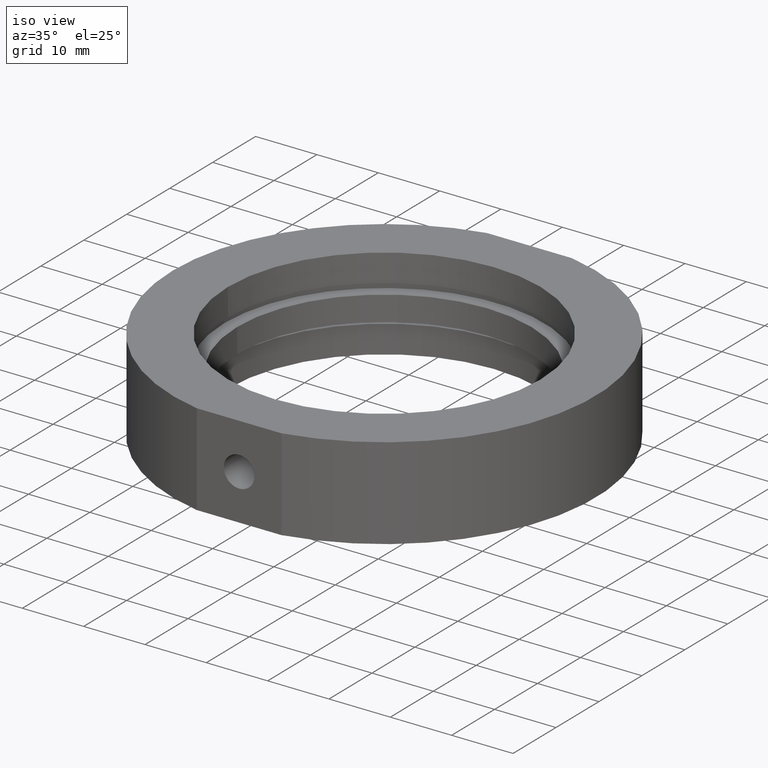
[diagram: clean part render]
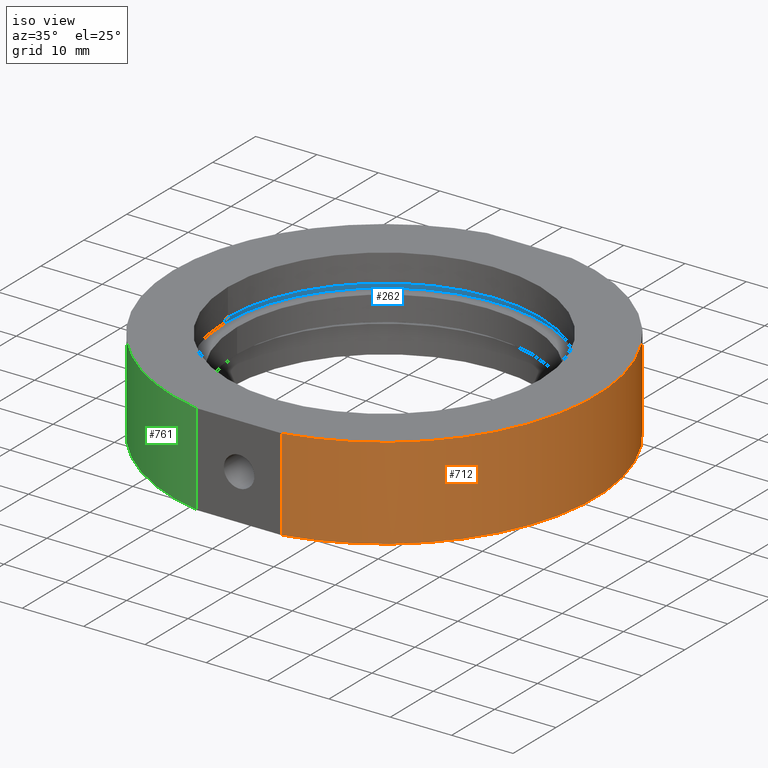
[diagram: same view with three faces highlighted in distinct colors, each labeled with its STEP entity id]
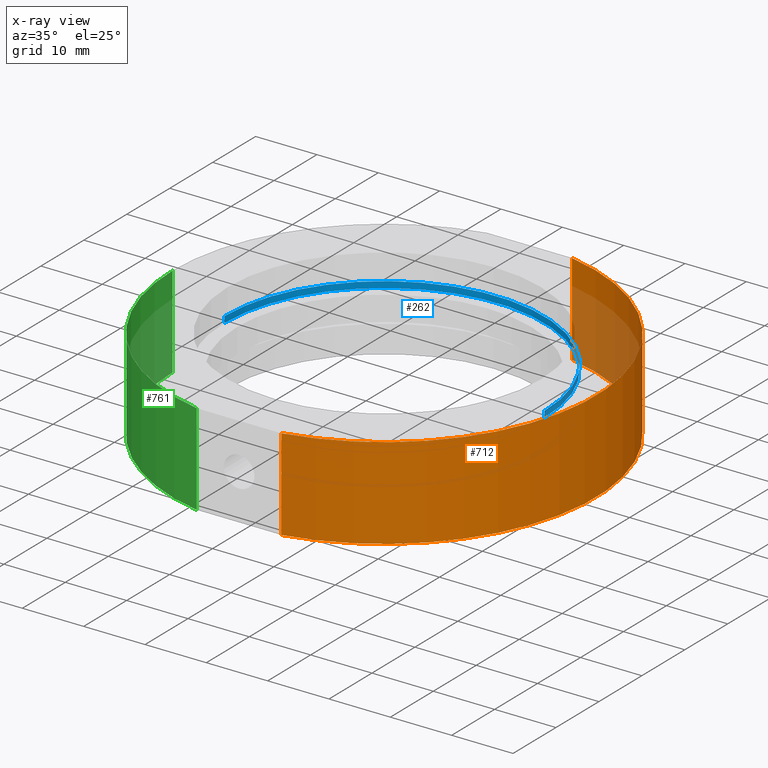
[diagram: x-ray of the same camera — body ghosted, the three highlighted faces saturated]
A machine part, iso view with three faces highlighted in distinct colors.
The next image is the same camera in x-ray (body ghosted, the three faces saturated) — at least one of them is partly hidden behind the body in this view.
Their STEP definitions:

[orange] entity #712 — the highlighted cylindrical surface (partial cylindrical patch) has radius 34.5 mm, axis along (-0, -0, -1).
#14 = DIRECTION ( 'NONE',  ( -1.224646799147350500E-016, -0.0000000000000000000, -1.000000000000000000 ) ) ;
#28 = CARTESIAN_POINT ( 'NONE',  ( 6.914477565225009700, 33.79999999999999700, 7.500000000000000000 ) ) ;
#33 = EDGE_CURVE ( 'NONE', #378, #446, #341, .T. ) ;
#43 = CYLINDRICAL_SURFACE ( 'NONE', #278, 34.49999999999999300 ) ;
#56 = CARTESIAN_POINT ( 'NONE',  ( 6.914477565225066500, 33.79999999999998300, -31.93906810035839800 ) ) ;
#86 = CARTESIAN_POINT ( 'NONE',  ( 4.829892851045829500E-015, 0.0000000000000000000, 7.500000000000007100 ) ) ;
#87 = EDGE_LOOP ( 'NONE', ( #813, #944, #492, #276 ) ) ;
#94 = CARTESIAN_POINT ( 'NONE',  ( 2.992922652324803100E-015, 0.0000000000000000000, -7.499999999999996400 ) ) ;
#111 = AXIS2_PLACEMENT_3D ( 'NONE', #94, #14, #442 ) ;
#219 = DIRECTION ( 'NONE',  ( -1.224646799147350500E-016, -0.0000000000000000000, -1.000000000000000000 ) ) ;
#225 = EDGE_CURVE ( 'NONE', #503, #342, #598, .T. ) ;
#240 = FACE_OUTER_BOUND ( 'NONE', #87, .T. ) ;
#270 = DIRECTION ( 'NONE',  ( -1.000000000000000000, 0.0000000000000000000, 2.011273595335428800E-016 ) ) ;
#276 = ORIENTED_EDGE ( 'NONE', *, *, #33, .T. ) ;
#278 = AXIS2_PLACEMENT_3D ( 'NONE', #791, #870, #270 ) ;
#304 = EDGE_CURVE ( 'NONE', #378, #342, #938, .T. ) ;
#335 = EDGE_CURVE ( 'NONE', #446, #503, #798, .T. ) ;
#341 = LINE ( 'NONE', #56, #422 ) ;
#342 = VERTEX_POINT ( 'NONE', #373 ) ;
#373 = CARTESIAN_POINT ( 'NONE',  ( 6.914477565225039000, -33.79999999999999700, -7.499999999999997300 ) ) ;
#378 = VERTEX_POINT ( 'NONE', #452 ) ;
#380 = DIRECTION ( 'NONE',  ( -1.224646799147350500E-016, -0.0000000000000000000, -1.000000000000000000 ) ) ;
#390 = CARTESIAN_POINT ( 'NONE',  ( 6.914477565225009700, -33.79999999999999700, 7.500000000000000000 ) ) ;
#422 = VECTOR ( 'NONE', #863, 1000.000000000000000 ) ;
#428 = CARTESIAN_POINT ( 'NONE',  ( 6.914477565225066500, -33.79999999999998300, -31.93906810035839800 ) ) ;
#442 = DIRECTION ( 'NONE',  ( -1.000000000000000000, 0.0000000000000000000, 1.257045997084642900E-016 ) ) ;
#446 = VERTEX_POINT ( 'NONE', #28 ) ;
#452 = CARTESIAN_POINT ( 'NONE',  ( 6.914477565225039000, 33.79999999999999700, -7.499999999999997300 ) ) ;
#492 = ORIENTED_EDGE ( 'NONE', *, *, #304, .F. ) ;
#503 = VERTEX_POINT ( 'NONE', #390 ) ;
#598 = LINE ( 'NONE', #428, #706 ) ;
#706 = VECTOR ( 'NONE', #219, 1000.000000000000000 ) ;
#712 = ADVANCED_FACE ( 'NONE', ( #240 ), #43, .T. ) ;
#791 = CARTESIAN_POINT ( 'NONE',  ( 0.0000000000000000000, 0.0000000000000000000, -31.93906810035839800 ) ) ;
#798 = CIRCLE ( 'NONE', #858, 34.49999999999998600 ) ;
#813 = ORIENTED_EDGE ( 'NONE', *, *, #335, .T. ) ;
#858 = AXIS2_PLACEMENT_3D ( 'NONE', #86, #380, #899 ) ;
#863 = DIRECTION ( 'NONE',  ( 1.224646799147350500E-016, 0.0000000000000000000, 1.000000000000000000 ) ) ;
#870 = DIRECTION ( 'NONE',  ( -1.224646799147350500E-016, -0.0000000000000000000, -1.000000000000000000 ) ) ;
#899 = DIRECTION ( 'NONE',  ( -1.000000000000000000, 0.0000000000000000000, 1.257045997084643400E-016 ) ) ;
#938 = CIRCLE ( 'NONE', #111, 34.50000000000000000 ) ;
#944 = ORIENTED_EDGE ( 'NONE', *, *, #225, .T. ) ;

[blue] entity #262 — the highlighted cylindrical surface (partial cylindrical patch) has radius 26.1 mm, axis along (-0, -0, -1).
#18 = AXIS2_PLACEMENT_3D ( 'NONE', #179, #909, #103 ) ;
#23 = DIRECTION ( 'NONE',  ( -1.224646799147350500E-016, -0.0000000000000000000, -1.000000000000000000 ) ) ;
#32 = AXIS2_PLACEMENT_3D ( 'NONE', #817, #882, #889 ) ;
#37 = VERTEX_POINT ( 'NONE', #345 ) ;
#103 = DIRECTION ( 'NONE',  ( -1.000000000000000000, 0.0000000000000000000, 1.163128767417399300E-016 ) ) ;
#129 = DIRECTION ( 'NONE',  ( -1.224646799147350500E-016, -0.0000000000000000000, -1.000000000000000000 ) ) ;
#169 = DIRECTION ( 'NONE',  ( -1.000000000000000000, 0.0000000000000000000, 1.163128767417399300E-016 ) ) ;
#179 = CARTESIAN_POINT ( 'NONE',  ( 4.278801791429521400E-015, 0.0000000000000000000, 3.000000000000002700 ) ) ;
#185 = DIRECTION ( 'NONE',  ( -1.224646799147350500E-016, -0.0000000000000000000, -1.000000000000000000 ) ) ;
#262 = ADVANCED_FACE ( 'NONE', ( #377 ), #562, .F. ) ;
#345 = CARTESIAN_POINT ( 'NONE',  ( 26.10000000000000500, 3.196328145774592300E-015, 1.999999999999998700 ) ) ;
#377 = FACE_OUTER_BOUND ( 'NONE', #472, .T. ) ;
#421 = CIRCLE ( 'NONE', #18, 26.10000000000000100 ) ;
#437 = ORIENTED_EDGE ( 'NONE', *, *, #547, .F. ) ;
#472 = EDGE_LOOP ( 'NONE', ( #743, #437, #850, #857 ) ) ;
#487 = EDGE_CURVE ( 'NONE', #614, #37, #924, .T. ) ;
#488 = VECTOR ( 'NONE', #129, 1000.000000000000000 ) ;
#489 = LINE ( 'NONE', #700, #597 ) ;
#525 = LINE ( 'NONE', #572, #488 ) ;
#547 = EDGE_CURVE ( 'NONE', #637, #952, #421, .T. ) ;
#555 = CARTESIAN_POINT ( 'NONE',  ( -26.09999999999999800, 0.0000000000000000000, 3.000000000000005800 ) ) ;
#558 = CARTESIAN_POINT ( 'NONE',  ( -26.09999999999999800, 0.0000000000000000000, 2.000000000000004900 ) ) ;
#562 = CYLINDRICAL_SURFACE ( 'NONE', #32, 26.10000000000000100 ) ;
#572 = CARTESIAN_POINT ( 'NONE',  ( -26.10000000000000100, 0.0000000000000000000, -31.93906810035839800 ) ) ;
#597 = VECTOR ( 'NONE', #185, 1000.000000000000000 ) ;
#614 = VERTEX_POINT ( 'NONE', #558 ) ;
#637 = VERTEX_POINT ( 'NONE', #555 ) ;
#651 = EDGE_CURVE ( 'NONE', #952, #37, #489, .T. ) ;
#677 = AXIS2_PLACEMENT_3D ( 'NONE', #845, #23, #169 ) ;
#700 = CARTESIAN_POINT ( 'NONE',  ( 26.10000000000000100, 3.196328145774592300E-015, -31.93906810035839800 ) ) ;
#743 = ORIENTED_EDGE ( 'NONE', *, *, #651, .F. ) ;
#759 = EDGE_CURVE ( 'NONE', #637, #614, #525, .T. ) ;
#817 = CARTESIAN_POINT ( 'NONE',  ( 0.0000000000000000000, 0.0000000000000000000, -31.93906810035839800 ) ) ;
#845 = CARTESIAN_POINT ( 'NONE',  ( 4.156337111514786200E-015, 0.0000000000000000000, 2.000000000000001800 ) ) ;
#850 = ORIENTED_EDGE ( 'NONE', *, *, #759, .T. ) ;
#857 = ORIENTED_EDGE ( 'NONE', *, *, #487, .T. ) ;
#882 = DIRECTION ( 'NONE',  ( -1.224646799147350500E-016, -0.0000000000000000000, -1.000000000000000000 ) ) ;
#889 = DIRECTION ( 'NONE',  ( -1.000000000000000000, 0.0000000000000000000, 0.0000000000000000000 ) ) ;
#897 = CARTESIAN_POINT ( 'NONE',  ( 26.10000000000000500, 3.196328145774592300E-015, 2.999999999999999600 ) ) ;
#909 = DIRECTION ( 'NONE',  ( -1.224646799147350500E-016, -0.0000000000000000000, -1.000000000000000000 ) ) ;
#924 = CIRCLE ( 'NONE', #677, 26.10000000000000100 ) ;
#952 = VERTEX_POINT ( 'NONE', #897 ) ;

[green] entity #761 — the highlighted cylindrical surface (partial cylindrical patch) has radius 34.5 mm, axis along (-0, -0, -1).
#29 = EDGE_LOOP ( 'NONE', ( #543, #553, #949, #313 ) ) ;
#48 = DIRECTION ( 'NONE',  ( -1.224646799147350500E-016, -0.0000000000000000000, -1.000000000000000000 ) ) ;
#52 = CARTESIAN_POINT ( 'NONE',  ( -34.49999999999997900, 0.0000000000000000000, 7.500000000000010700 ) ) ;
#100 = EDGE_CURVE ( 'NONE', #136, #834, #148, .T. ) ;
#123 = VECTOR ( 'NONE', #898, 1000.000000000000000 ) ;
#127 = CARTESIAN_POINT ( 'NONE',  ( 0.0000000000000000000, 0.0000000000000000000, -31.93906810035839800 ) ) ;
#130 = DIRECTION ( 'NONE',  ( -1.000000000000000000, 0.0000000000000000000, 1.257045997084643400E-016 ) ) ;
#136 = VERTEX_POINT ( 'NONE', #569 ) ;
#148 = CIRCLE ( 'NONE', #687, 34.49999999999998600 ) ;
#182 = CARTESIAN_POINT ( 'NONE',  ( -6.914477565225033700, -33.79999999999999700, -7.499999999999995600 ) ) ;
#202 = VECTOR ( 'NONE', #466, 1000.000000000000000 ) ;
#291 = CARTESIAN_POINT ( 'NONE',  ( 2.992922652324803100E-015, 0.0000000000000000000, -7.499999999999996400 ) ) ;
#313 = ORIENTED_EDGE ( 'NONE', *, *, #338, .T. ) ;
#338 = EDGE_CURVE ( 'NONE', #647, #136, #645, .T. ) ;
#398 = LINE ( 'NONE', #688, #202 ) ;
#466 = DIRECTION ( 'NONE',  ( -1.224646799147350500E-016, -0.0000000000000000000, -1.000000000000000000 ) ) ;
#491 = CARTESIAN_POINT ( 'NONE',  ( -34.50000000000000000, 0.0000000000000000000, -7.499999999999992000 ) ) ;
#543 = ORIENTED_EDGE ( 'NONE', *, *, #100, .T. ) ;
#553 = ORIENTED_EDGE ( 'NONE', *, *, #571, .T. ) ;
#569 = CARTESIAN_POINT ( 'NONE',  ( -6.914477565224999000, -33.79999999999999700, 7.500000000000000000 ) ) ;
#571 = EDGE_CURVE ( 'NONE', #834, #801, #398, .T. ) ;
#574 = CARTESIAN_POINT ( 'NONE',  ( 4.829892851045829500E-015, 0.0000000000000000000, 7.500000000000007100 ) ) ;
#593 = DIRECTION ( 'NONE',  ( -1.224646799147350500E-016, -0.0000000000000000000, -1.000000000000000000 ) ) ;
#633 = FACE_OUTER_BOUND ( 'NONE', #29, .T. ) ;
#645 = LINE ( 'NONE', #746, #123 ) ;
#647 = VERTEX_POINT ( 'NONE', #182 ) ;
#664 = DIRECTION ( 'NONE',  ( -1.000000000000000000, 0.0000000000000000000, 1.257045997084642900E-016 ) ) ;
#687 = AXIS2_PLACEMENT_3D ( 'NONE', #574, #48, #130 ) ;
#688 = CARTESIAN_POINT ( 'NONE',  ( -34.49999999999999300, 0.0000000000000000000, -31.93906810035839100 ) ) ;
#723 = DIRECTION ( 'NONE',  ( -1.000000000000000000, 0.0000000000000000000, 2.011273595335428800E-016 ) ) ;
#727 = DIRECTION ( 'NONE',  ( -1.224646799147350500E-016, -0.0000000000000000000, -1.000000000000000000 ) ) ;
#738 = AXIS2_PLACEMENT_3D ( 'NONE', #127, #727, #723 ) ;
#746 = CARTESIAN_POINT ( 'NONE',  ( -6.914477565225066500, -33.79999999999998300, -31.93906810035839800 ) ) ;
#761 = ADVANCED_FACE ( 'NONE', ( #633 ), #914, .T. ) ;
#801 = VERTEX_POINT ( 'NONE', #491 ) ;
#827 = AXIS2_PLACEMENT_3D ( 'NONE', #291, #593, #664 ) ;
#832 = CIRCLE ( 'NONE', #827, 34.50000000000000000 ) ;
#834 = VERTEX_POINT ( 'NONE', #52 ) ;
#844 = EDGE_CURVE ( 'NONE', #647, #801, #832, .T. ) ;
#898 = DIRECTION ( 'NONE',  ( 1.224646799147350500E-016, 0.0000000000000000000, 1.000000000000000000 ) ) ;
#914 = CYLINDRICAL_SURFACE ( 'NONE', #738, 34.49999999999999300 ) ;
#949 = ORIENTED_EDGE ( 'NONE', *, *, #844, .F. ) ;